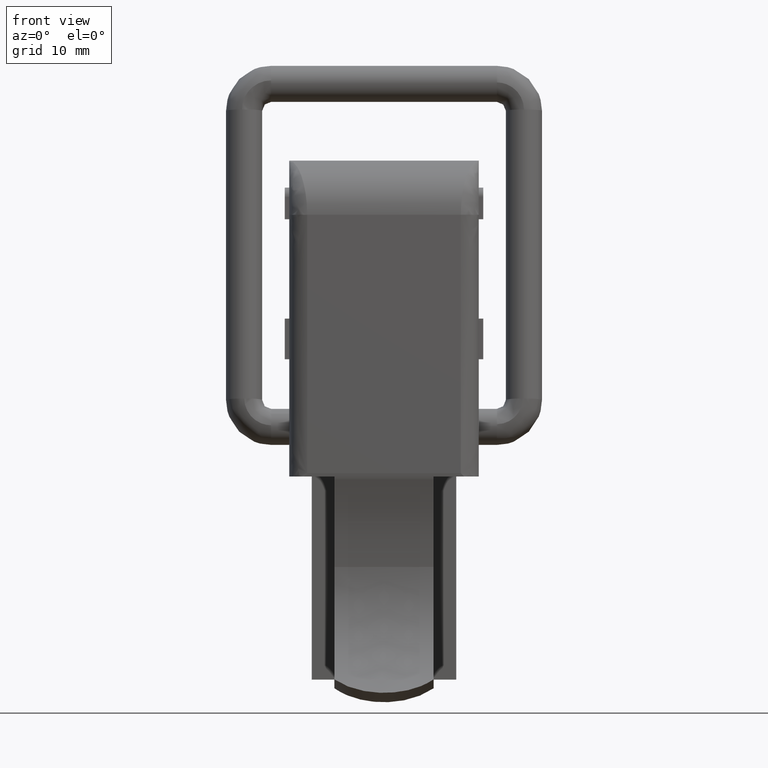
[diagram: clean part render]
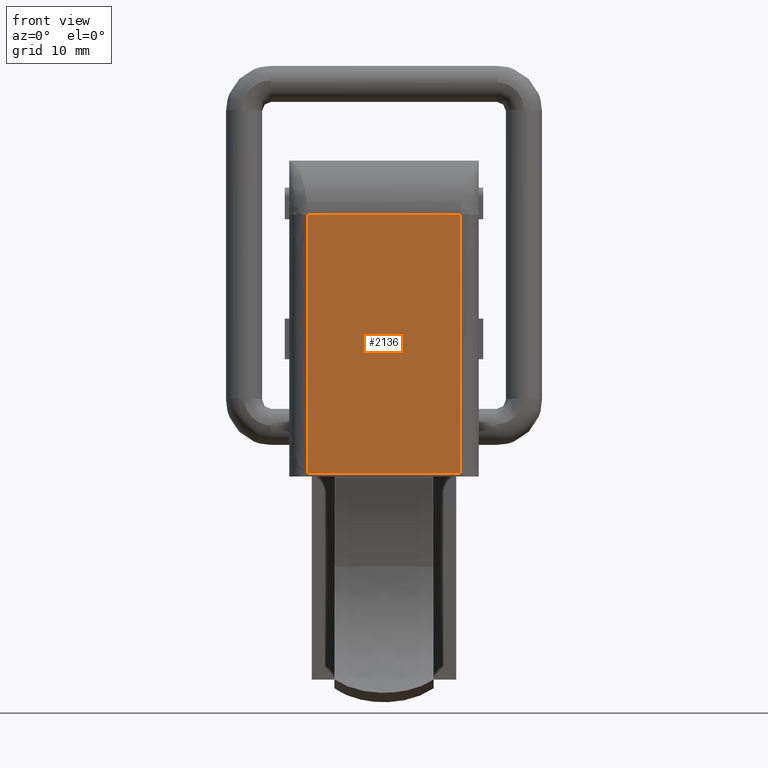
[diagram: same view with one face highlighted and labeled with its STEP entity id]
A machine part, front view. The second image highlights one B-rep face of the part: STEP entity #2136.
In plain terms, the highlighted face is a freeform B-spline surface patch.
Its self-contained STEP definition (entity closure, byte-faithful):
#471=CARTESIAN_POINT('',(8.500000000000000,-6.500000000000000,-5.107695154586680));
#472=VERTEX_POINT('',#471);
#482=CARTESIAN_POINT('',(-8.500000000000000,-6.500000000000000,-5.107695154586680));
#483=VERTEX_POINT('',#482);
#484=CARTESIAN_POINT('',(-8.500000000000000,-6.500000000000000,-5.107695154586680));
#485=CARTESIAN_POINT('',(8.500000000000000,-6.500000000000000,-5.107695154586680));
#486=QUASI_UNIFORM_CURVE('',1,(#484,#485),.UNSPECIFIED.,.F.,.U.);
#487=EDGE_CURVE('',#483,#472,#486,.T.);
#1298=CARTESIAN_POINT('',(8.500000000000000,-6.500000000000000,23.500000000000000));
#1299=VERTEX_POINT('',#1298);
#1355=CARTESIAN_POINT('',(8.500000000000000,-6.500000000000000,-5.107695154586680));
#1356=CARTESIAN_POINT('',(8.500000000000000,-6.500000000000000,23.500000000000000));
#1357=QUASI_UNIFORM_CURVE('',1,(#1355,#1356),.UNSPECIFIED.,.F.,.U.);
#1358=EDGE_CURVE('',#472,#1299,#1357,.T.);
#1418=CARTESIAN_POINT('',(-8.500000000000000,-6.500000000000000,23.500000000000000));
#1419=VERTEX_POINT('',#1418);
#1501=CARTESIAN_POINT('',(-8.500000000000000,-6.500000000000000,23.500000000000000));
#1502=CARTESIAN_POINT('',(-8.500000000000000,-6.500000000000000,-5.107695154586680));
#1503=QUASI_UNIFORM_CURVE('',1,(#1501,#1502),.UNSPECIFIED.,.F.,.U.);
#1504=EDGE_CURVE('',#1419,#483,#1503,.T.);
#2116=CARTESIAN_POINT('',(8.500000000000000,-6.500000000000000,23.500000000000000));
#2117=CARTESIAN_POINT('',(-8.500000000000000,-6.500000000000000,23.500000000000000));
#2118=QUASI_UNIFORM_CURVE('',1,(#2116,#2117),.UNSPECIFIED.,.F.,.U.);
#2119=EDGE_CURVE('',#1299,#1419,#2118,.T.);
#2125=CARTESIAN_POINT('',(-9.349149967050700,-6.500000000000000,24.928954317524340));
#2126=CARTESIAN_POINT('',(-9.349149967050700,-6.500000000000000,-6.536650239429201));
#2127=CARTESIAN_POINT('',(9.349150423026234,-6.500000000000000,24.928954317524340));
#2128=CARTESIAN_POINT('',(9.349150423026234,-6.500000000000000,-6.536650239429201));
#2129=B_SPLINE_SURFACE_WITH_KNOTS('',1,1,((#2125,#2127),(#2126,#2128)),.UNSPECIFIED.,.F.,.F.,.U.,(2,2),(2,2),(0.0,31.465604556953540),(0.0,18.698300390076930),.UNSPECIFIED.);
#2130=ORIENTED_EDGE('',*,*,#1504,.T.);
#2131=ORIENTED_EDGE('',*,*,#487,.T.);
#2132=ORIENTED_EDGE('',*,*,#1358,.T.);
#2133=ORIENTED_EDGE('',*,*,#2119,.T.);
#2134=EDGE_LOOP('',(#2130,#2131,#2132,#2133));
#2135=FACE_OUTER_BOUND('',#2134,.T.);
#2136=ADVANCED_FACE('',(#2135),#2129,.T.);